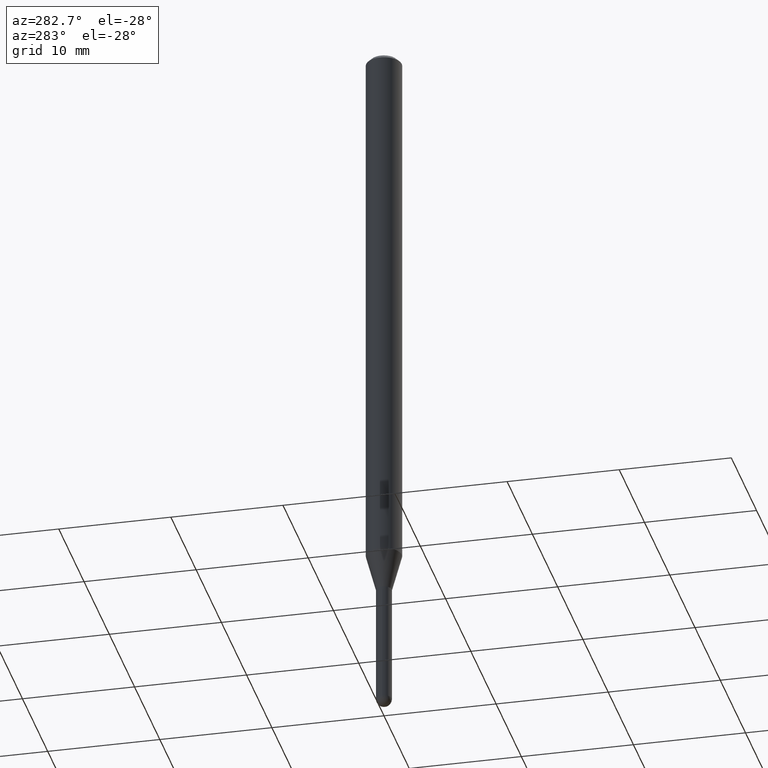
[diagram: clean part render]
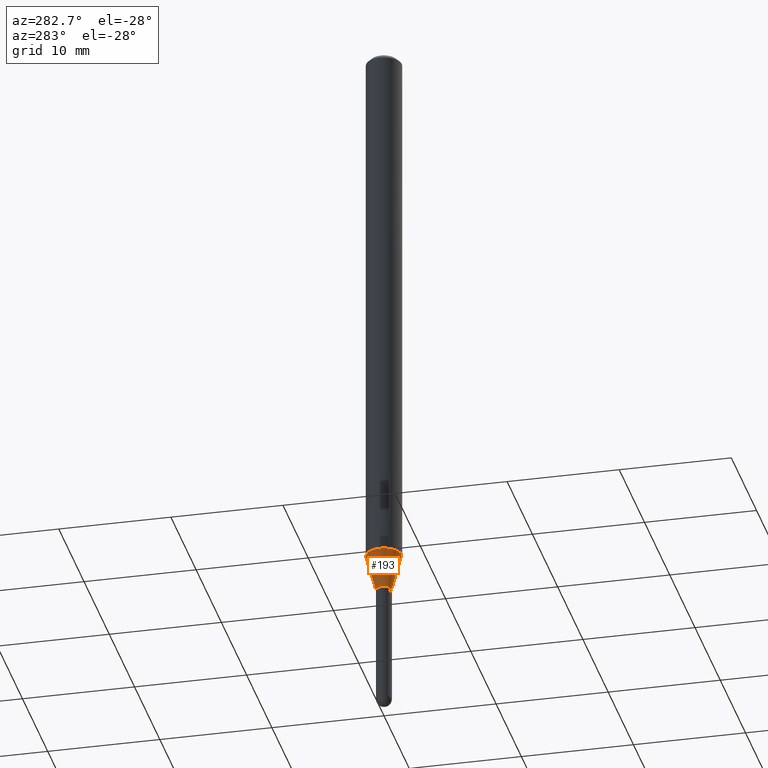
[diagram: same view with one face highlighted and labeled with its STEP entity id]
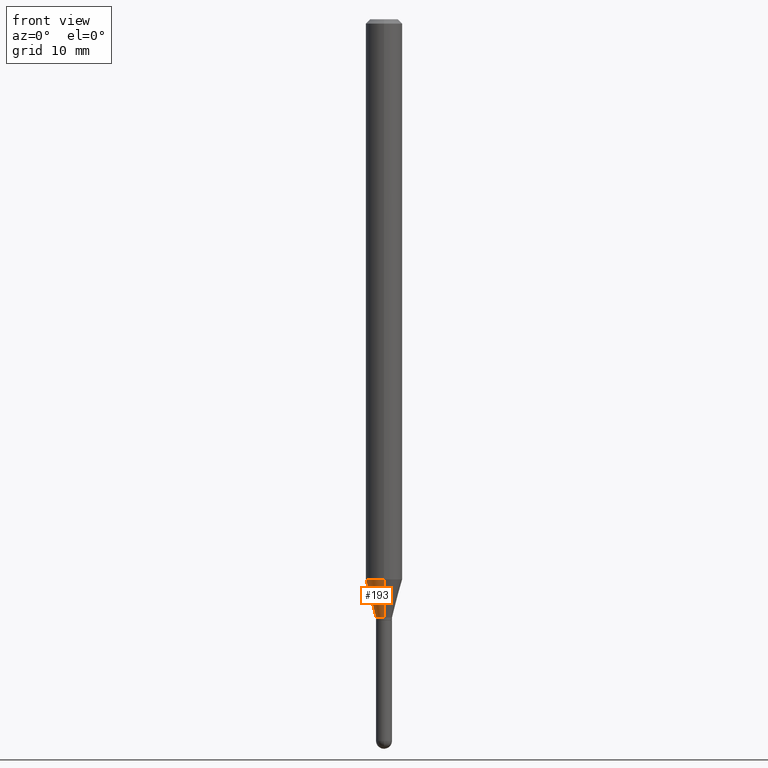
[diagram: same view with one face highlighted and labeled with its STEP entity id]
A machine part, auxiliary view. The second image highlights one B-rep face of the part: STEP entity #193.
A second angle (front view) of the same face is appended — the face is thin or edge-on in the first view.
In plain terms, the highlighted conical surface has half-angle 15 deg.
Its self-contained STEP definition (entity closure, byte-faithful):
#13 = AXIS2_PLACEMENT_3D ( 'NONE', #217, #214, #331 ) ;
#42 = DIRECTION ( 'NONE',  ( -2.445451097427837378E-29, 3.491506698791517959E-15, 1.000000000000000000 ) ) ;
#77 = VERTEX_POINT ( 'NONE', #184 ) ;
#81 = VECTOR ( 'NONE', #90, 39.37007874015748143 ) ;
#84 = CARTESIAN_POINT ( 'NONE',  ( 5.013174749727065980E-29, -7.157588732522609785E-15, -2.049999999999999822 ) ) ;
#85 = ORIENTED_EDGE ( 'NONE', *, *, #356, .F. ) ;
#90 = DIRECTION ( 'NONE',  ( -1.807323732225330139E-15, -0.2588190451025181860, 0.9659258262890689783 ) ) ;
#123 = CARTESIAN_POINT ( 'NONE',  ( 1.953992523340751796E-16, 0.02749999999999249226, -2.049999999999999822 ) ) ;
#124 = LINE ( 'NONE', #432, #81 ) ;
#148 = EDGE_CURVE ( 'NONE', #212, #488, #124, .T. ) ;
#170 = CARTESIAN_POINT ( 'NONE',  ( -1.920314736363197372E-16, -0.02750000000000681066, -2.049999999999999822 ) ) ;
#184 = CARTESIAN_POINT ( 'NONE',  ( 3.197442310920924528E-16, 0.02749999999999249226, -2.049999999999999822 ) ) ;
#185 = CONICAL_SURFACE ( 'NONE', #291, 0.02749999999999964972, 0.2617993877991502960 ) ;
#193 = ADVANCED_FACE ( 'NONE', ( #472 ), #185, .T. ) ;
#198 = DIRECTION ( 'NONE',  ( -6.982962677686266711E-15, -1.000000000000000000, 0.000000000000000000 ) ) ;
#212 = VERTEX_POINT ( 'NONE', #170 ) ;
#214 = DIRECTION ( 'NONE',  ( -2.445451097427837378E-29, 3.491506698791517959E-15, 1.000000000000000000 ) ) ;
#217 = CARTESIAN_POINT ( 'NONE',  ( 4.693745578721162808E-29, -6.701521918702610690E-15, -1.919378221735088097 ) ) ;
#223 = ORIENTED_EDGE ( 'NONE', *, *, #148, .T. ) ;
#231 = CARTESIAN_POINT ( 'NONE',  ( 4.440892098501092576E-16, 0.06249999999999326927, -1.919378221735088319 ) ) ;
#248 = CARTESIAN_POINT ( 'NONE',  ( -4.364351673553448308E-16, -0.06250000000000671685, -1.919378221735087875 ) ) ;
#250 = EDGE_LOOP ( 'NONE', ( #85, #453, #223, #324 ) ) ;
#278 = CIRCLE ( 'NONE', #347, 0.02749999999999964972 ) ;
#291 = AXIS2_PLACEMENT_3D ( 'NONE', #84, #42, #198 ) ;
#304 = DIRECTION ( 'NONE',  ( -2.445451097427837378E-29, 3.491506698791517959E-15, 1.000000000000000000 ) ) ;
#324 = ORIENTED_EDGE ( 'NONE', *, *, #449, .F. ) ;
#331 = DIRECTION ( 'NONE',  ( -6.982962677686265922E-15, -1.000000000000000000, 4.370956789862821150E-15 ) ) ;
#337 = CARTESIAN_POINT ( 'NONE',  ( 5.013174749727065980E-29, -7.157588732522609785E-15, -2.049999999999999822 ) ) ;
#347 = AXIS2_PLACEMENT_3D ( 'NONE', #337, #304, #498 ) ;
#356 = EDGE_CURVE ( 'NONE', #77, #358, #381, .T. ) ;
#358 = VERTEX_POINT ( 'NONE', #231 ) ;
#381 = LINE ( 'NONE', #123, #445 ) ;
#383 = DIRECTION ( 'NONE',  ( 1.839019923739600315E-15, 0.2588190451025249583, 0.9659258262890670910 ) ) ;
#400 = EDGE_CURVE ( 'NONE', #77, #212, #278, .T. ) ;
#432 = CARTESIAN_POINT ( 'NONE',  ( -1.920314736363197372E-16, -0.02750000000000681066, -2.049999999999999822 ) ) ;
#445 = VECTOR ( 'NONE', #383, 39.37007874015748143 ) ;
#449 = EDGE_CURVE ( 'NONE', #358, #488, #501, .T. ) ;
#453 = ORIENTED_EDGE ( 'NONE', *, *, #400, .T. ) ;
#472 = FACE_OUTER_BOUND ( 'NONE', #250, .T. ) ;
#488 = VERTEX_POINT ( 'NONE', #248 ) ;
#498 = DIRECTION ( 'NONE',  ( -6.982962677686266711E-15, -1.000000000000000000, 0.000000000000000000 ) ) ;
#501 = CIRCLE ( 'NONE', #13, 0.06250000000000000000 ) ;